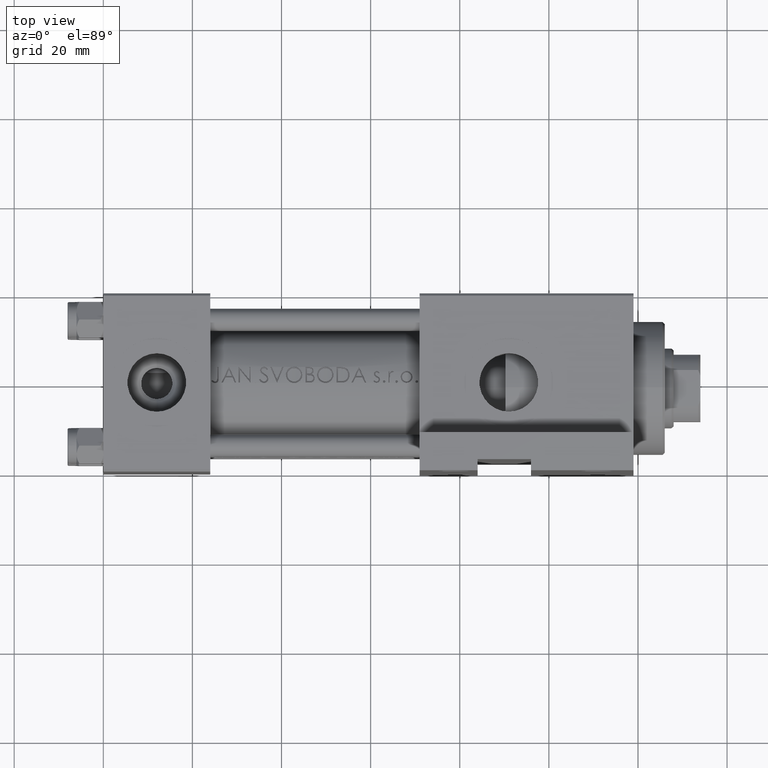
[diagram: clean part render]
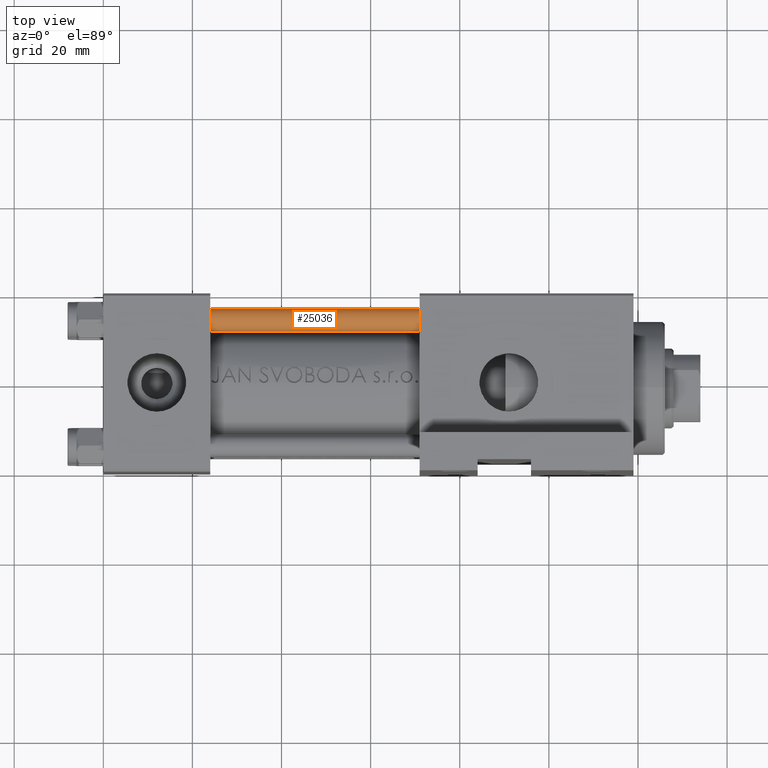
[diagram: same view with one face highlighted and labeled with its STEP entity id]
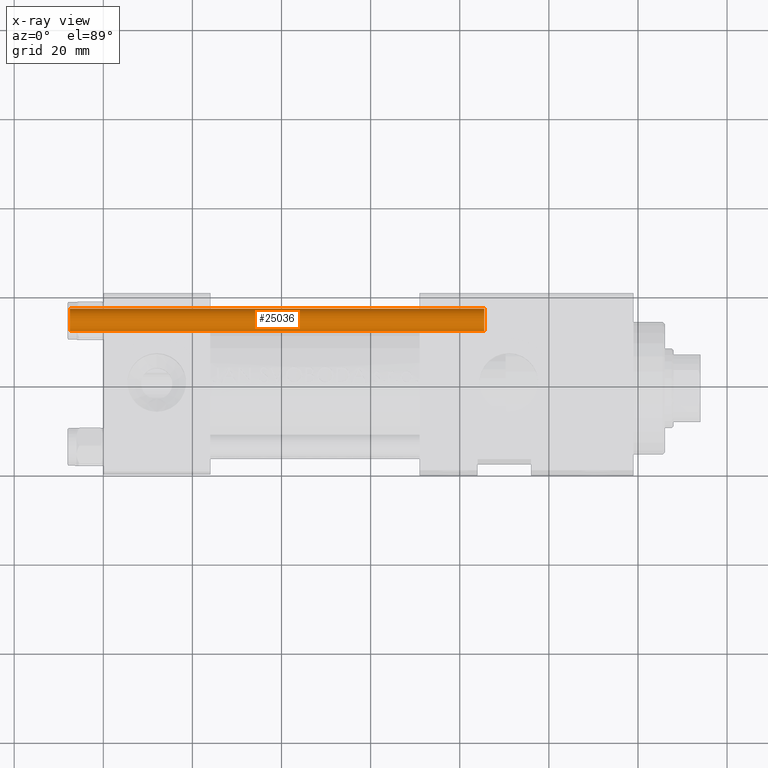
[diagram: x-ray of the same camera — body ghosted, the highlighted face saturated]
A machine part, top view. The second image highlights one B-rep face of the part: STEP entity #25036.
The next image is the same camera in x-ray: the body ghosted, the highlighted face saturated — about 0% of this face is hidden behind the body in this view.
In plain terms, the highlighted cylindrical surface (edge-blend (fillet) strip) has radius 2.5 mm, axis along (1, -0, 0).
Its self-contained STEP definition (entity closure, byte-faithful):
#691 = EDGE_LOOP ( 'NONE', ( #26098, #27144, #27262, #4848 ) ) ;
#1729 = CARTESIAN_POINT ( 'NONE',  ( -2.500000000000000000, 0.000000000000000000, 93.50000000000001421 ) ) ;
#4578 = LINE ( 'NONE', #11814, #36462 ) ;
#4605 = CARTESIAN_POINT ( 'NONE',  ( 0.000000000000000000, 0.000000000000000000, 94.00000000000000000 ) ) ;
#4848 = ORIENTED_EDGE ( 'NONE', *, *, #30109, .T. ) ;
#8311 = DIRECTION ( 'NONE',  ( -0.000000000000000000, -0.000000000000000000, -1.000000000000000000 ) ) ;
#8351 = CARTESIAN_POINT ( 'NONE',  ( 0.000000000000000000, 0.000000000000000000, 93.50000000000001421 ) ) ;
#9221 = LINE ( 'NONE', #32634, #45881 ) ;
#10865 = VERTEX_POINT ( 'NONE', #1729 ) ;
#11814 = CARTESIAN_POINT ( 'NONE',  ( -2.500000000000000000, 0.000000000000000000, 94.00000000000000000 ) ) ;
#16075 = CYLINDRICAL_SURFACE ( 'NONE', #42623, 2.500000000000000000 ) ;
#17019 = CARTESIAN_POINT ( 'NONE',  ( 2.500000000000000000, 3.061616997868383141E-16, 0.5000000000000004441 ) ) ;
#17840 = EDGE_CURVE ( 'NONE', #18533, #37119, #9221, .T. ) ;
#18533 = VERTEX_POINT ( 'NONE', #24754 ) ;
#18847 = DIRECTION ( 'NONE',  ( 0.000000000000000000, 0.000000000000000000, -1.000000000000000000 ) ) ;
#20440 = DIRECTION ( 'NONE',  ( 1.000000000000000000, 0.000000000000000000, 0.000000000000000000 ) ) ;
#23294 = DIRECTION ( 'NONE',  ( -0.000000000000000000, -0.000000000000000000, -1.000000000000000000 ) ) ;
#24412 = DIRECTION ( 'NONE',  ( -0.000000000000000000, -0.000000000000000000, -1.000000000000000000 ) ) ;
#24754 = CARTESIAN_POINT ( 'NONE',  ( 2.500000000000000000, 3.061616997868383141E-16, 93.50000000000001421 ) ) ;
#25036 = ADVANCED_FACE ( 'NONE', ( #38752 ), #16075, .T. ) ;
#26098 = ORIENTED_EDGE ( 'NONE', *, *, #17840, .F. ) ;
#27144 = ORIENTED_EDGE ( 'NONE', *, *, #47660, .T. ) ;
#27262 = ORIENTED_EDGE ( 'NONE', *, *, #34819, .T. ) ;
#27660 = CIRCLE ( 'NONE', #37223, 2.500000000000000000 ) ;
#30109 = EDGE_CURVE ( 'NONE', #45617, #37119, #27660, .T. ) ;
#32634 = CARTESIAN_POINT ( 'NONE',  ( 2.500000000000000000, 3.061616997868383141E-16, 94.00000000000000000 ) ) ;
#34819 = EDGE_CURVE ( 'NONE', #10865, #45617, #4578, .T. ) ;
#36462 = VECTOR ( 'NONE', #8311, 1000.000000000000000 ) ;
#37119 = VERTEX_POINT ( 'NONE', #17019 ) ;
#37223 = AXIS2_PLACEMENT_3D ( 'NONE', #39166, #44116, #20440 ) ;
#38752 = FACE_OUTER_BOUND ( 'NONE', #691, .T. ) ;
#39166 = CARTESIAN_POINT ( 'NONE',  ( 0.000000000000000000, 0.000000000000000000, 0.5000000000000004441 ) ) ;
#41942 = CARTESIAN_POINT ( 'NONE',  ( -2.500000000000000000, 0.000000000000000000, 0.5000000000000004441 ) ) ;
#42019 = DIRECTION ( 'NONE',  ( 1.000000000000000000, 0.000000000000000000, 0.000000000000000000 ) ) ;
#42623 = AXIS2_PLACEMENT_3D ( 'NONE', #4605, #23294, #45988 ) ;
#43112 = AXIS2_PLACEMENT_3D ( 'NONE', #8351, #18847, #42019 ) ;
#44116 = DIRECTION ( 'NONE',  ( -0.000000000000000000, -0.000000000000000000, 1.000000000000000000 ) ) ;
#45617 = VERTEX_POINT ( 'NONE', #41942 ) ;
#45881 = VECTOR ( 'NONE', #24412, 1000.000000000000000 ) ;
#45988 = DIRECTION ( 'NONE',  ( -1.000000000000000000, 0.000000000000000000, 0.000000000000000000 ) ) ;
#47660 = EDGE_CURVE ( 'NONE', #18533, #10865, #47908, .T. ) ;
#47908 = CIRCLE ( 'NONE', #43112, 2.500000000000000000 ) ;